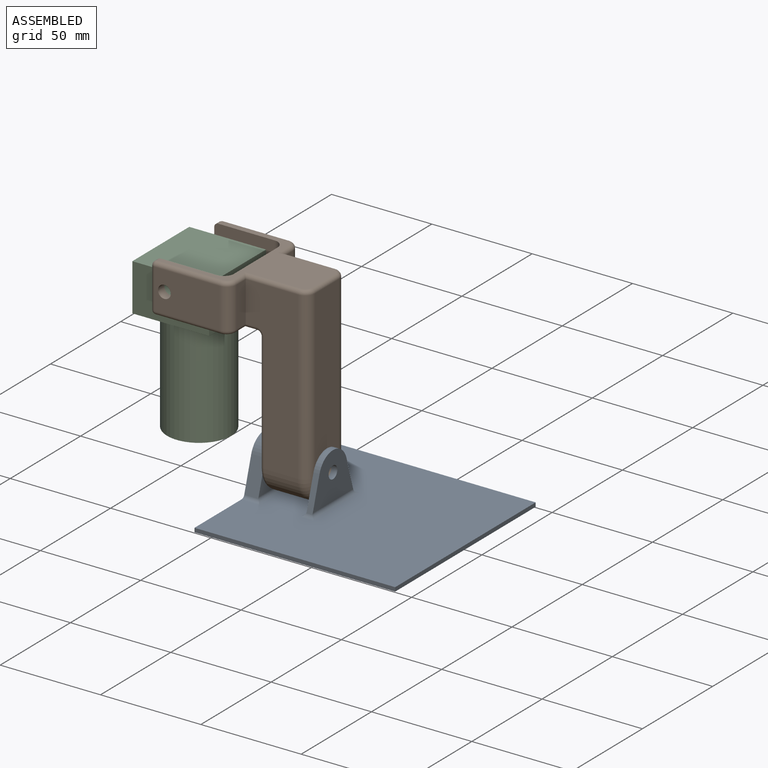
[diagram: assembled view]
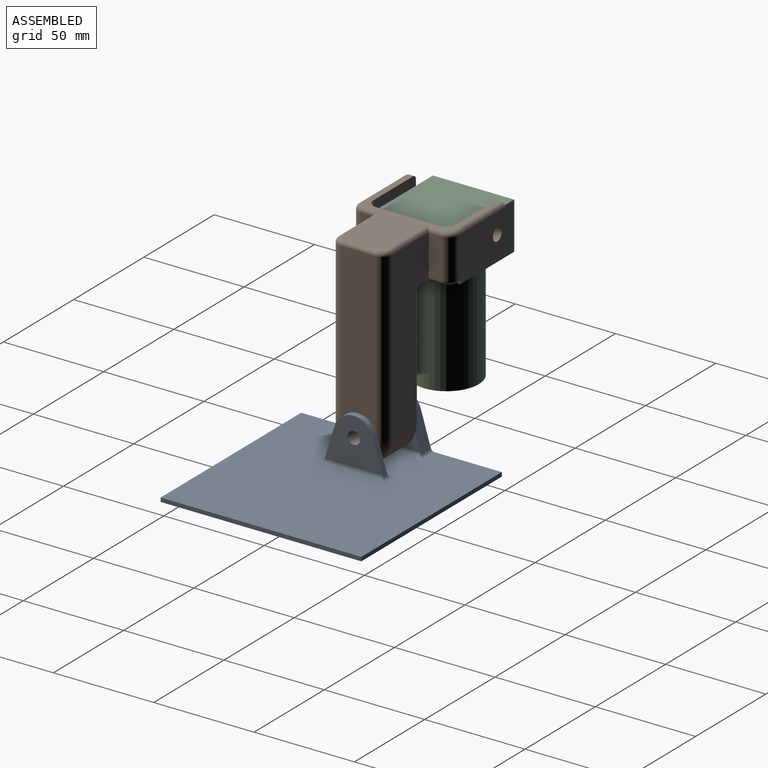
[diagram: assembled view, second angle]
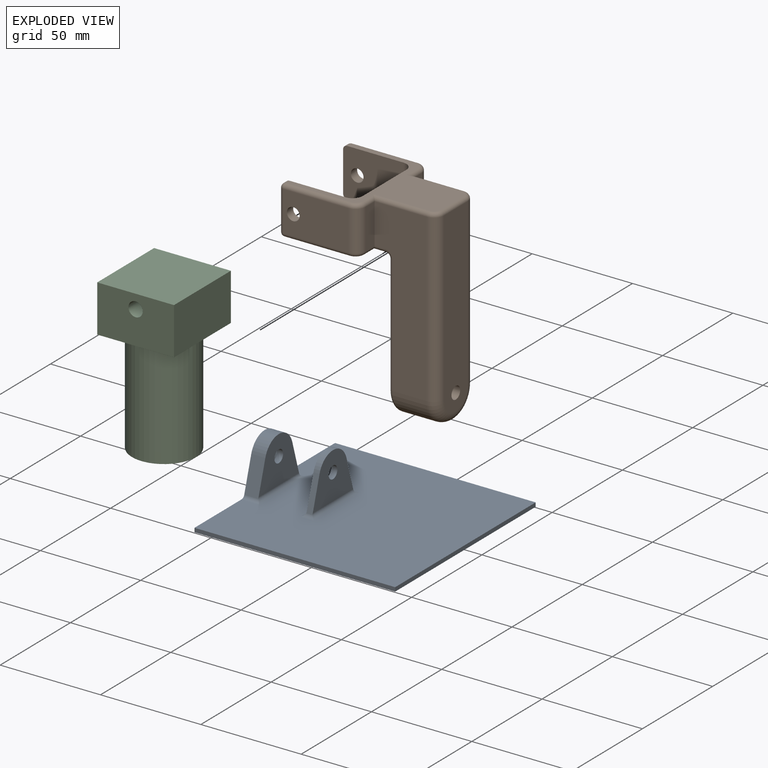
[diagram: exploded view]
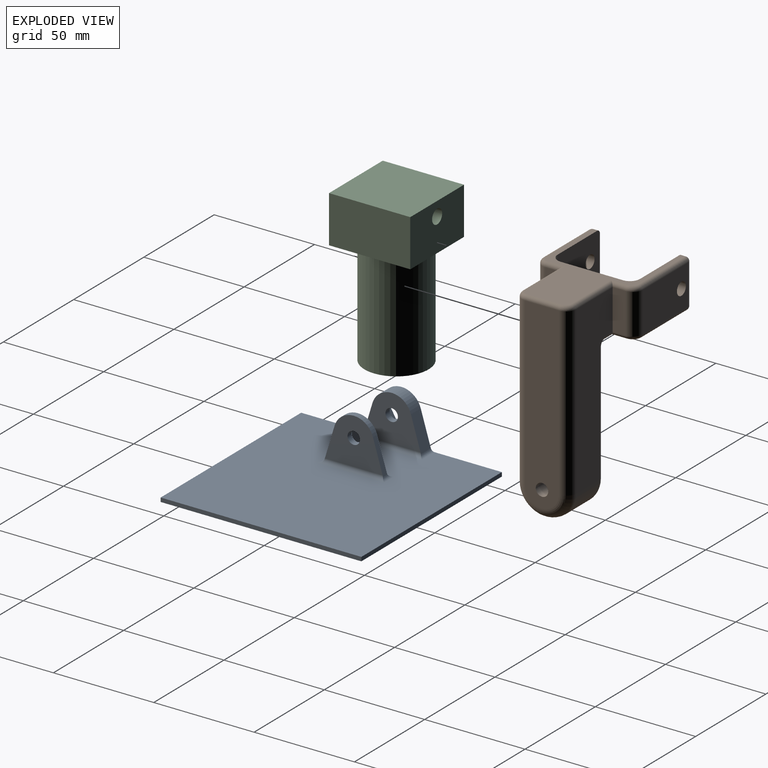
[diagram: exploded view, second angle]
ASSEMBLY  parts=3 mates=2
PART A: 31 faces, bbox 100x100x27 mm
  f0: cylinder r=3.1mm len=6.2mm, axis (-1,0,0), area 58.4mm2, adj f15,f23
  f1: plane 16.49x7.09mm, normal (0,-0.96,0.29), area 120.6mm2, adj f2,f6,f15,f25,f26
  f2: cylinder r=10mm len=19.14mm, axis (-1,0,0), area 178.7mm2, adj f1,f4,f6,f15
  f3: cylinder r=10mm len=19.14mm, axis (-1,0,0), area 76.6mm2, adj f11,f13,f14,f16
  f4: plane 16.49x7.09mm, normal (0,0.96,0.29), area 120.6mm2, adj f2,f6,f15,f24,f25
  f5: plane 100x2mm, normal (0,1,0), area 200mm2, adj f6,f8,f9,f10
  f6: plane 100x27mm, normal (-1,0,0), area 653.9mm2, adj f1,f2,f4,f5,f7,f9,f10,f17
  f7: plane 100x2mm, normal (0,-1,0), area 200mm2, adj f6,f8,f9,f10
  f8: plane 100x2mm, normal (1,0,0), area 200mm2, adj f5,f7,f9,f10
  f9: plane 100x100mm, normal (0,0,1), area 9472.5mm2, adj f5,f6,f7,f8,f24,f25,f26,f27
  f10: plane 100x100mm, normal (0,0,-1), area 10000mm2, adj f5,f6,f7,f8
  f11: plane 16.49x5mm, normal (0,-0.96,0.29), area 51.7mm2, adj f3,f14,f16,f27,f29,f30
  f12: cylinder r=3.1mm len=6.2mm, axis (-1,0,0), area 58.4mm2, adj f14,f16
  f13: plane 16.49x5mm, normal (0,0.96,0.29), area 51.7mm2, adj f3,f14,f16,f27,f28,f30
  f14: plane 28.79x23mm, normal (1,0,0), area 450.7mm2, adj f3,f11,f12,f13,f27
  f15: plane 28.79x23mm, normal (1,0,0), area 450.7mm2, adj f0,f1,f2,f4,f25
  f16: plane 28.79x23mm, normal (-1,0,0), area 450.7mm2, adj f3,f11,f12,f13,f30
  f17: plane 5x4mm, normal (0,0.87,0.5), area 23.1mm2, adj f6,f18,f22,f23
  f18: plane 5x4mm, normal (0,0.87,-0.5), area 23.1mm2, adj f6,f17,f19,f23
  f19: plane 5.77x4mm, normal (0,0,-1), area 23.1mm2, adj f6,f18,f20,f23
  f20: plane 5x4mm, normal (0,-0.87,-0.5), area 23.1mm2, adj f6,f19,f21,f23
  f21: plane 5x4mm, normal (0,-0.87,0.5), area 23.1mm2, adj f6,f20,f22,f23
  f22: plane 5.77x4mm, normal (0,0,1), area 23.1mm2, adj f6,f17,f21,f23
  f23: plane 11.55x10mm, normal (-1,0,0), area 56.4mm2, adj f0,f17,f18,f19,f20,f21,f22
  f24: cylinder r=2mm len=9mm, axis (1,0,0), area 20.1mm2, adj f4,f6,f9,f25
  f25: cylinder r=2mm len=32.97mm, axis (0,1,0), area 95.5mm2, adj f1,f4,f9,f15,f24,f26
  f26: cylinder r=2mm len=9mm, axis (1,0,0), area 20.1mm2, adj f1,f6,f9,f25
  f27: cylinder r=2mm len=32.97mm, axis (0,-1,0), area 95.5mm2, adj f9,f11,f13,f14,f28,f29
  f28: cylinder r=2mm len=7mm, axis (1,0,0), area 12.2mm2, adj f9,f13,f27,f30
  f29: cylinder r=2mm len=7mm, axis (1,0,0), area 12.2mm2, adj f9,f11,f27,f30
  f30: cylinder r=2mm len=32.97mm, axis (0,-1,0), area 95.5mm2, adj f9,f11,f13,f16,f28,f29
PART B: 61 faces, bbox 70.9x50.8x99.6 mm
  f0: plane 70.5x23mm, normal (-1,0,0), area 1534.5mm2, adj f6,f46,f49,f53,f54
  f1: cylinder r=13.5mm len=27mm, axis (1,0,0), area 721mm2, adj f2,f4,f21,f49
  f2: plane 83x26mm, normal (0,-1,0), area 1594.4mm2, adj f1,f8,f20,f38,f53,f56,f58
  f3: plane 66.5x46mm, normal (0,0,1), area 996mm2, adj f12,f13,f14,f23,f24,f26,f27,f28
  f4: plane 83x26mm, normal (0,1,0), area 1594.4mm2, adj f1,f9,f19,f28,f46,f47,f50
  f5: plane 91.5x17mm, normal (1,0,0), area 1494.3mm2, adj f6,f19,f20,f21,f33
  f6: cylinder r=3.1mm len=24mm, axis (-1,0,0), area 467.5mm2, adj f0,f5
  f7: plane 46x42.5mm, normal (0,0,-1), area 447.9mm2, adj f12,f13,f14,f23,f24,f35,f39,f41
  f8: plane 20x6.5mm, normal (1,0,0), area 130mm2, adj f2,f25,f40,f60
  f9: plane 20x6.5mm, normal (1,0,0), area 130mm2, adj f4,f22,f26,f43
  f10: plane 32.5x20mm, normal (0,1,0), area 618.3mm2, adj f18,f22,f29,f34,f39
  f11: plane 20x2.5mm, normal (-1,0,0), area 50mm2, adj f12,f30,f34,f35
  f12: plane 30x24mm, normal (0,-1,0), area 686.6mm2, adj f3,f7,f11,f18,f23,f30,f35
  f13: plane 31x24mm, normal (-1,0,0), area 744mm2, adj f3,f7,f23,f24
  f14: plane 30x24mm, normal (0,1,0), area 686.6mm2, adj f3,f7,f15,f17,f24,f44,f51
  f15: plane 20x2.5mm, normal (-1,0,0), area 50mm2, adj f14,f44,f51,f52
  f16: plane 32.5x20mm, normal (0,-1,0), area 618.3mm2, adj f17,f25,f45,f52,f57
  f17: cylinder r=3.17mm len=6.35mm, axis (0,-1,0), area 89.8mm2, adj f14,f16
  f18: cylinder r=3.17mm len=6.35mm, axis (0,-1,0), area 89.8mm2, adj f10,f12
  f19: cylinder r=5mm len=83mm, axis (0,0,-1), area 651.9mm2, adj f4,f5,f21,f31
  f20: cylinder r=5mm len=83mm, axis (0,0,1), area 651.9mm2, adj f2,f5,f21,f36
  f21: torus R=8.5mm, axis (-1,0,0), area 288.3mm2, adj f1,f5,f19,f20
  f22: cylinder r=5mm len=20mm, axis (0,0,1), area 157.1mm2, adj f9,f10,f27,f41
  f23: cylinder r=5mm len=24mm, axis (0,0,-1), area 188.5mm2, adj f3,f7,f12,f13
  f24: cylinder r=5mm len=24mm, axis (0,0,-1), area 188.5mm2, adj f3,f7,f13,f14
  f25: cylinder r=5mm len=20mm, axis (0,0,1), area 157.1mm2, adj f8,f16,f42,f59
  f26: cylinder r=2mm len=8.5mm, axis (0,1,0), area 22.7mm2, adj f3,f9,f27,f28
  f27: torus R=3mm, axis (0,0,1), area 21.1mm2, adj f3,f22,f26,f29
  f28: cylinder r=2mm len=28mm, axis (1,0,0), area 84mm2, adj f3,f4,f26,f31
  f29: cylinder r=2mm len=32.5mm, axis (-1,0,0), area 102.1mm2, adj f3,f10,f27,f32
  f30: cylinder r=2mm len=2.5mm, axis (0,-1,0), area 7.9mm2, adj f3,f11,f12,f32
  f31: torus R=3mm, axis (0,0,1), area 21.1mm2, adj f3,f19,f28,f33
  f32: sphere r=2mm, area 6.3mm2, adj f29,f30,f34
  f33: cylinder r=2mm len=17mm, axis (0,1,0), area 53.4mm2, adj f3,f5,f31,f36
  f34: cylinder r=2mm len=20mm, axis (0,0,1), area 62.8mm2, adj f10,f11,f32,f37
  f35: cylinder r=2mm len=2.5mm, axis (0,-1,0), area 7.9mm2, adj f7,f11,f12,f37
  f36: torus R=3mm, axis (0,0,1), area 21.1mm2, adj f3,f20,f33,f38
  f37: sphere r=2mm, area 6.3mm2, adj f34,f35,f39
  f38: cylinder r=2mm len=28mm, axis (-1,0,0), area 84mm2, adj f2,f3,f36,f40
  f39: cylinder r=2mm len=32.5mm, axis (-1,0,0), area 102.1mm2, adj f7,f10,f37,f41
  f40: cylinder r=2mm len=8.5mm, axis (0,1,0), area 22.7mm2, adj f3,f8,f38,f42
  f41: torus R=3mm, axis (0,0,-1), area 21.1mm2, adj f7,f22,f39,f43
  f42: torus R=3mm, axis (0,0,1), area 21.1mm2, adj f3,f25,f40,f45
  f43: cylinder r=2mm len=8.5mm, axis (0,1,0), area 22.7mm2, adj f7,f9,f41,f47
  f44: cylinder r=2mm len=2.5mm, axis (0,-1,0), area 7.9mm2, adj f3,f14,f15,f48
  f45: cylinder r=2mm len=32.5mm, axis (1,0,0), area 102.1mm2, adj f3,f16,f42,f48
  f46: cylinder r=2mm len=59mm, axis (0,0,1), area 185.4mm2, adj f0,f4,f49,f50
  f47: cylinder r=2mm len=7mm, axis (-1,0,0), area 18mm2, adj f4,f7,f43,f50
  f48: sphere r=2mm, area 6.3mm2, adj f44,f45,f52
  f49: torus R=11.5mm, axis (1,0,0), area 126.1mm2, adj f0,f1,f46,f53
  f50: torus R=4mm, axis (0,1,0), area 13.5mm2, adj f4,f46,f47,f54
  f51: cylinder r=2mm len=2.5mm, axis (0,-1,0), area 7.9mm2, adj f7,f14,f15,f55
  f52: cylinder r=2mm len=20mm, axis (0,0,1), area 62.8mm2, adj f15,f16,f48,f55
  f53: cylinder r=2mm len=59mm, axis (0,0,-1), area 185.4mm2, adj f0,f2,f49,f56
  f54: cylinder r=2mm len=23mm, axis (0,1,0), area 72.3mm2, adj f0,f7,f50,f56
  f55: sphere r=2mm, area 6.3mm2, adj f51,f52,f57
  f56: torus R=4mm, axis (0,1,0), area 13.5mm2, adj f2,f53,f54,f58
  f57: cylinder r=2mm len=32.5mm, axis (1,0,0), area 102.1mm2, adj f7,f16,f55,f59
  f58: cylinder r=2mm len=7mm, axis (-1,0,0), area 18mm2, adj f2,f7,f56,f60
  f59: torus R=3mm, axis (0,0,-1), area 21.1mm2, adj f7,f25,f57,f60
  f60: cylinder r=2mm len=8.5mm, axis (0,1,0), area 22.7mm2, adj f7,f8,f58,f59
PART C: 12 faces, bbox 38.3x40.5x77 mm
  f0: plane 40.5x23.5mm, normal (-1,0,0), area 951.7mm2, adj f1,f3,f4,f5
  f1: plane 38.25x23.5mm, normal (0,-1,0), area 858.9mm2, adj f0,f2,f4,f5,f11
  f2: plane 40.5x23.5mm, normal (1,0,0), area 951.8mm2, adj f1,f3,f4,f5
  f3: plane 38.25x23.5mm, normal (0,1,0), area 858.9mm2, adj f0,f2,f4,f5,f9
  f4: plane 40.5x38.25mm, normal (0,0,1), area 744.9mm2, adj f0,f1,f2,f3,f6
  f5: plane 40.5x38.25mm, normal (0,0,-1), area 1549.1mm2, adj f0,f1,f2,f3
  f6: cylinder r=16mm len=53.5mm, axis (0,0,-1), area 5378.4mm2, adj f4,f7
  f7: plane 32x32mm, normal (0,0,1), area 804.2mm2, adj f6
  f8: cone r=0mm half-angle=59deg, axis (0,1,0), area 46.7mm2, adj f9
  f9: cylinder r=3.57mm len=15mm, axis (0,1,0), area 336.3mm2, adj f3,f8
  f10: cone r=0mm half-angle=59deg, axis (0,-1,0), area 46.7mm2, adj f11
  f11: cylinder r=3.57mm len=15mm, axis (0,-1,0), area 336.3mm2, adj f1,f10
PLACE A t=(-104.76,-4.9,84.15)mm
PLACE B t=(-104.76,-4.9,84.15)mm
PLACE C rot(axis=(0,-1,0),180deg) t=(-168.14,-25.4,181.15)mm
MATE revolute C.f8 <-> B.f17  axis (0,-1,0) through (-187.26,-25.4,174.15)mm
MATE revolute B.f6 <-> A.f0  axis (-1,0,0) through (-147.76,-4.9,101.15)mm
